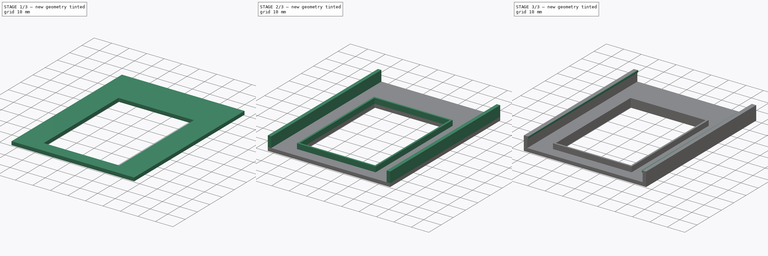
[diagram: build sequence overview — one tinted view per stage of 3, left to right]
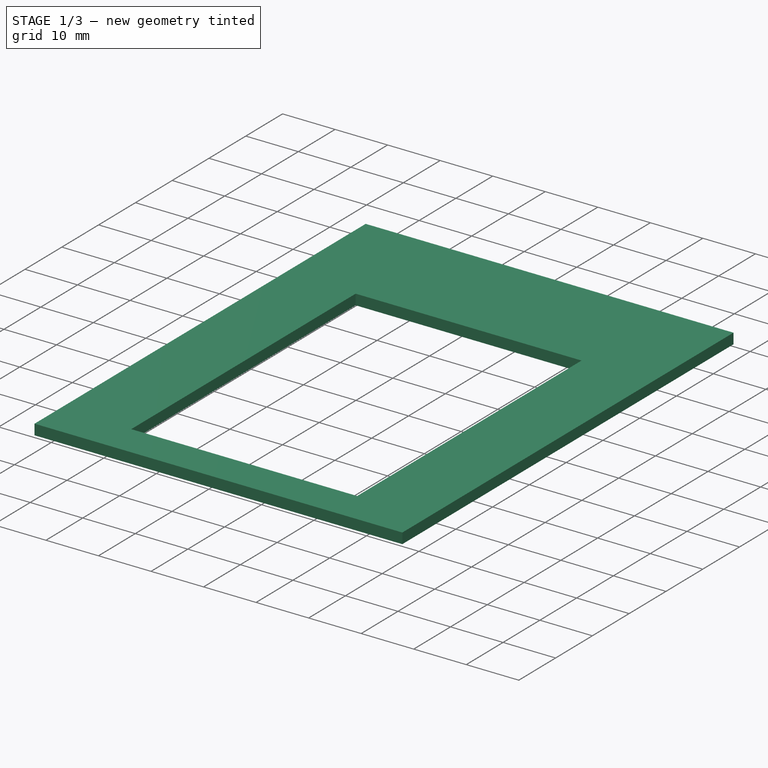
[diagram: stage 1 of 3 — iso view after this stage's code; geometry added in this stage tinted green]
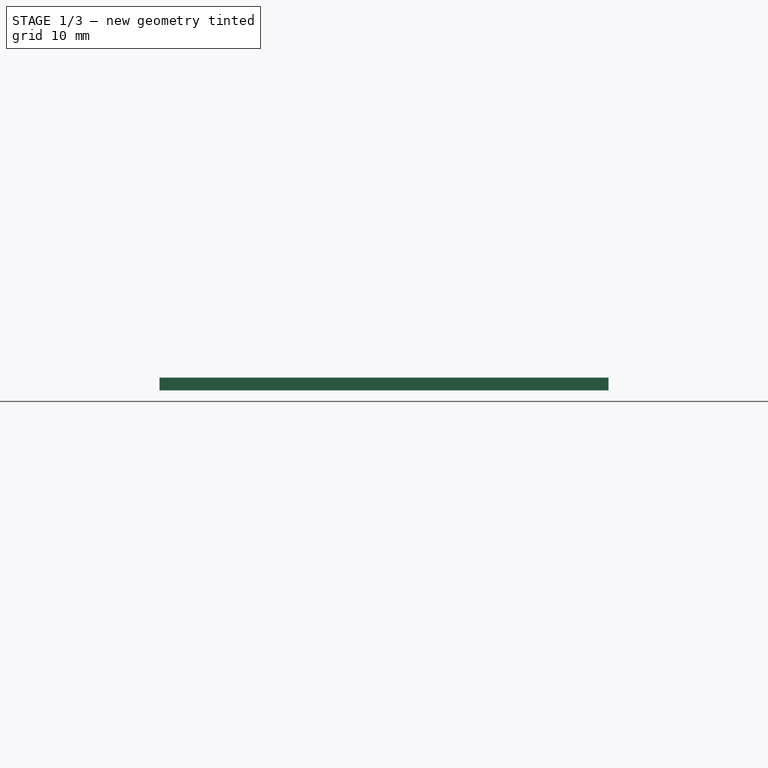
[diagram: stage 1 of 3 — front view after this stage's code; geometry added in this stage tinted green]
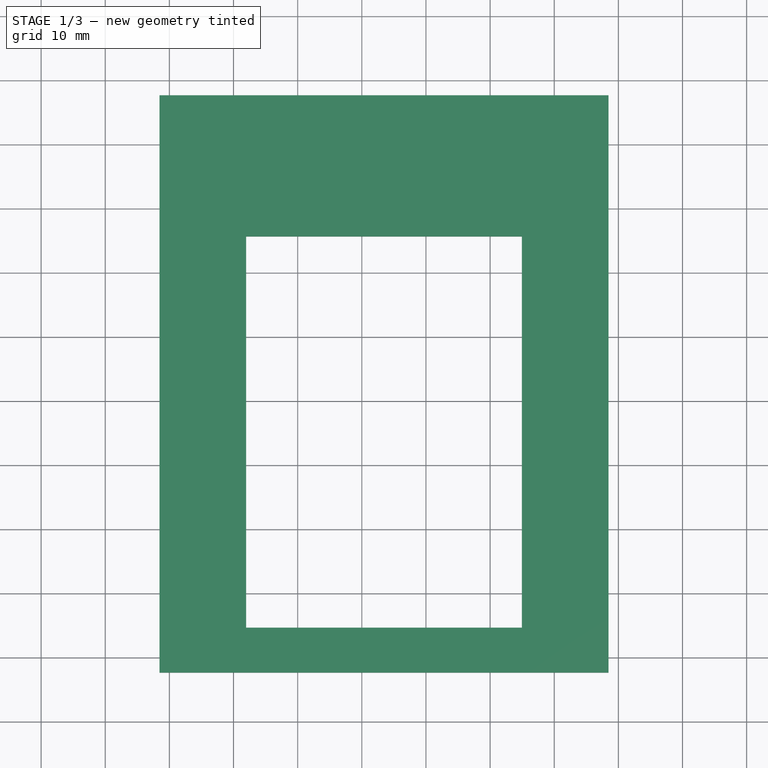
[diagram: stage 1 of 3 — top view after this stage's code; geometry added in this stage tinted green]
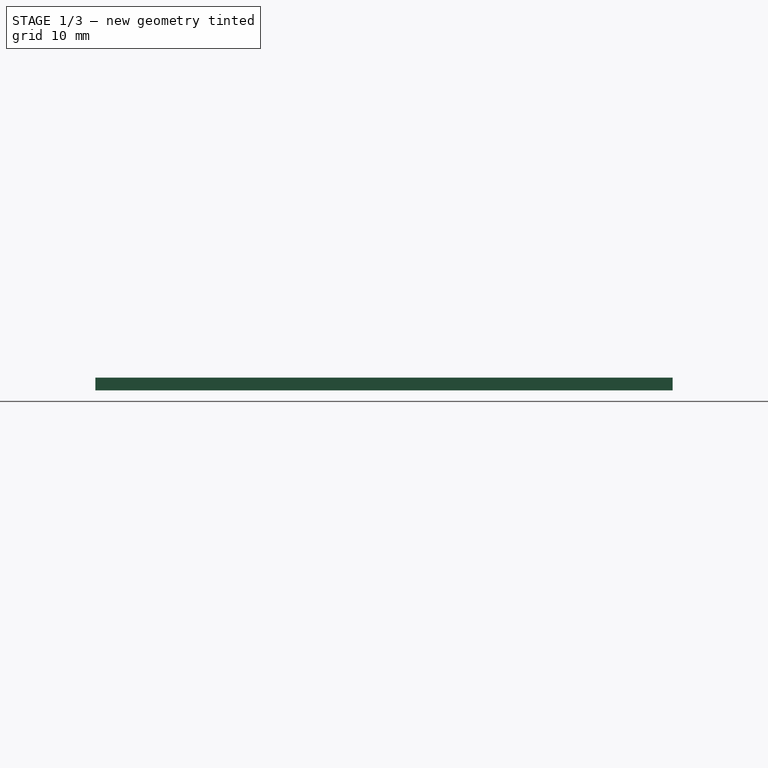
[diagram: stage 1 of 3 — right view after this stage's code; geometry added in this stage tinted green]
FCSTD DOCUMENT  (FreeCAD 0.18R16131 (Git))
Label: Main
License: All rights reserved
LicenseURL: http://en.wikipedia.org/wiki/All_rights_reserved
objects: Sketcher::SketchObject×7, PartDesign::Pad×5, PartDesign::Pocket×2, PartDesign::Body×1
note: 22 computed .brp shape members not serialized (recipe doc carries the construction recipe); baked Part::Feature solids carry a one-line shape summary decoded from their .brp

FEATURE [Sketcher::SketchObject] Sketch
  MapMode = 5
  Support = -> [XY_Plane]
  sketch-geometry (4):
    g0: LineSegment StartX=-31.5408 StartY=-62.3243 StartZ=0 EndX=38.4592 EndY=-62.3243 EndZ=0
    g1: LineSegment StartX=38.4592 StartY=-62.3243 StartZ=0 EndX=38.4592 EndY=27.6757 EndZ=0
    g2: LineSegment StartX=38.4592 StartY=27.6757 StartZ=0 EndX=-31.5408 EndY=27.6757 EndZ=0
    g3: LineSegment StartX=-31.5408 StartY=27.6757 StartZ=0 EndX=-31.5408 EndY=-62.3243 EndZ=0
  constraints (10):
    c: Coincident(g0,g1)
    c: Coincident(g1,g2)
    c: Coincident(g2,g3)
    c: Coincident(g3,g0)
    c: Horizontal(g0)
    c: Horizontal(g2)
    c: Vertical(g1)
    c: Vertical(g3)
    c: DistanceX(g0,g0) = 70
    c: DistanceY(g3,g3) = 90
FEATURE [PartDesign::Pad] Pad
  Length = 2
  Length2 = 100
  Profile = -> Sketch
  Type = 0
FEATURE [Sketcher::SketchObject] Sketch001
  ExternalGeometry = -> [Pad]
  MapMode = 5
  Placement = pos=(0,0,2) rot=(0,0,1;0rad)
  Support = -> [Pad]
  sketch-geometry (4):
    g0: LineSegment StartX=-18.0408 StartY=5.67568 StartZ=0 EndX=24.9592 EndY=5.67568 EndZ=0
    g1: LineSegment StartX=24.9592 StartY=5.67568 StartZ=0 EndX=24.9592 EndY=-55.3243 EndZ=0
    g2: LineSegment StartX=24.9592 StartY=-55.3243 StartZ=0 EndX=-18.0408 EndY=-55.3243 EndZ=0
    g3: LineSegment StartX=-18.0408 StartY=-55.3243 StartZ=0 EndX=-18.0408 EndY=5.67568 EndZ=0
  constraints (12):
    c: Coincident(g0,g1)
    c: Coincident(g1,g2)
    c: Coincident(g2,g3)
    c: Coincident(g3,g0)
    c: Horizontal(g0)
    c: Horizontal(g2)
    c: Vertical(g1)
    c: Vertical(g3)
    c: DistanceY(g-5,g2) = 7
    c: DistanceX(g2,g2) = 43
    c: DistanceY(g1,g1) = 61
    c: DistanceX(g-5,g2) = 13.5
FEATURE [PartDesign::Pocket] Pocket
  BaseFeature = -> Pad
  Length = 2
  Length2 = 100
  Profile = -> Sketch001
  Type = 0
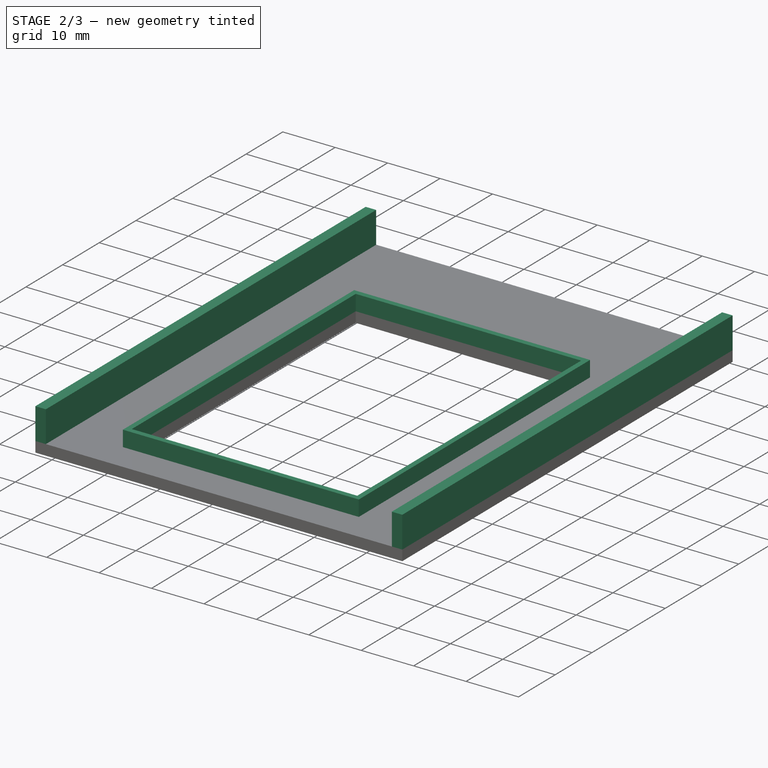
[diagram: stage 2 of 3 — iso view after this stage's code; geometry added in this stage tinted green]
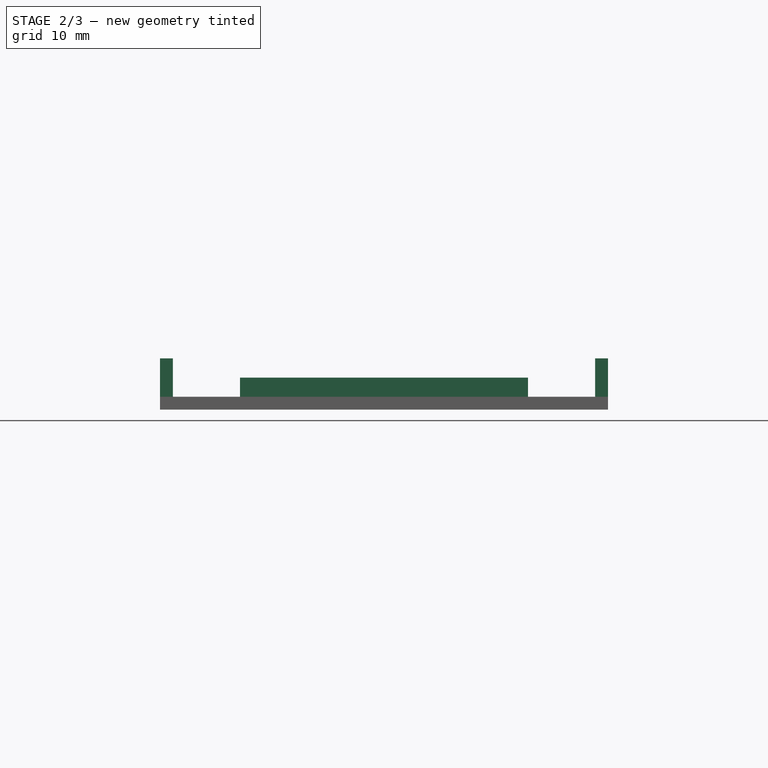
[diagram: stage 2 of 3 — front view after this stage's code; geometry added in this stage tinted green]
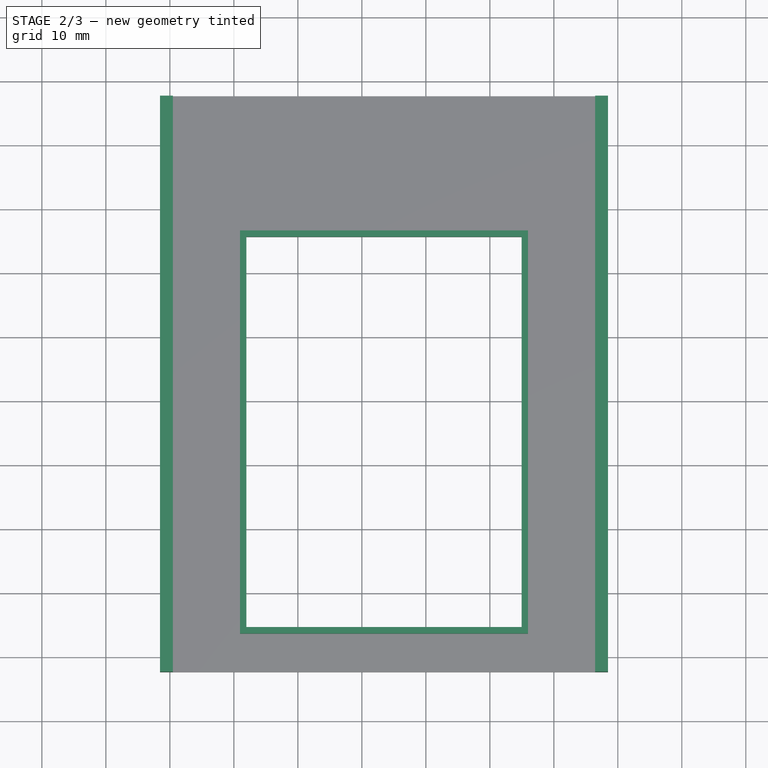
[diagram: stage 2 of 3 — top view after this stage's code; geometry added in this stage tinted green]
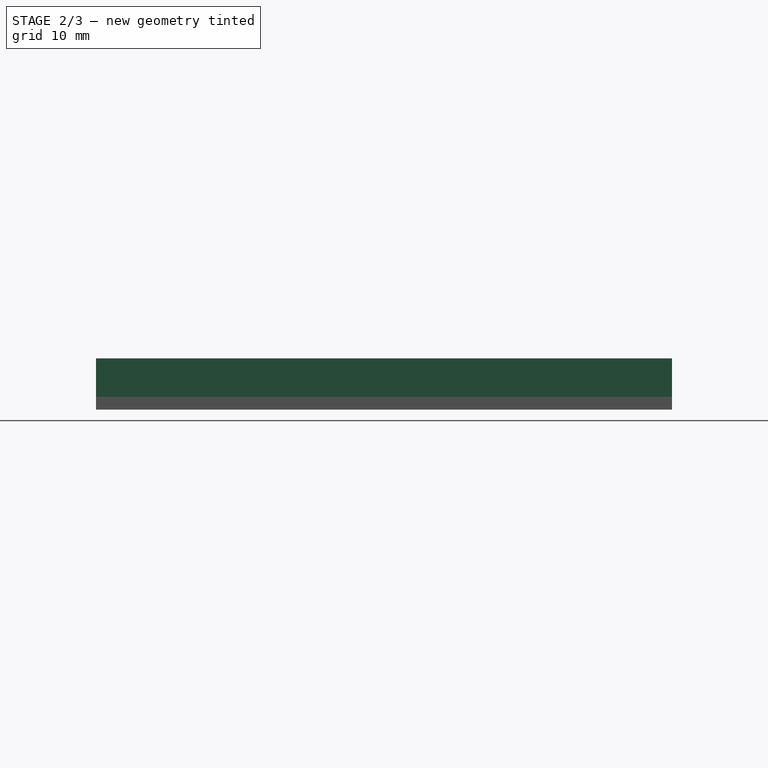
[diagram: stage 2 of 3 — right view after this stage's code; geometry added in this stage tinted green]
FEATURE [Sketcher::SketchObject] Sketch002
  ExternalGeometry = -> [Pocket]
  MapMode = 5
  Placement = pos=(0,0,2) rot=(0,0,1;0rad)
  Support = -> [Pocket]
  sketch-geometry (4):
    g0: LineSegment StartX=-19.0408 StartY=6.67568 StartZ=0 EndX=25.9592 EndY=6.67568 EndZ=0
    g1: LineSegment StartX=25.9592 StartY=6.67568 StartZ=0 EndX=25.9592 EndY=-56.3243 EndZ=0
    g2: LineSegment StartX=25.9592 StartY=-56.3243 StartZ=0 EndX=-19.0408 EndY=-56.3243 EndZ=0
    g3: LineSegment StartX=-19.0408 StartY=-56.3243 StartZ=0 EndX=-19.0408 EndY=6.67568 EndZ=0
  constraints (12):
    c: Coincident(g0,g1)
    c: Coincident(g1,g2)
    c: Coincident(g2,g3)
    c: Coincident(g3,g0)
    c: Horizontal(g0)
    c: Horizontal(g2)
    c: Vertical(g1)
    c: Vertical(g3)
    c: DistanceY(g-4,g0) = 1
    c: DistanceX(g0,g-4) = 1
    c: DistanceX(g-5,g0) = 1
    c: DistanceY(g2,g-6) = 1
FEATURE [PartDesign::Pad] Pad001
  BaseFeature = -> Pocket
  Length = 3
  Length2 = 100
  Profile = -> Sketch002
  Type = 0
FEATURE [Sketcher::SketchObject] Sketch003
  ExternalGeometry = -> [Pad001]
  MapMode = 5
  Placement = pos=(0,0,5) rot=(0,0,1;0rad)
  Support = -> [Pad001]
  sketch-geometry (4):
    g0: LineSegment StartX=-18.0408 StartY=5.67568 StartZ=0 EndX=24.9592 EndY=5.67568 EndZ=0
    g1: LineSegment StartX=24.9592 StartY=5.67568 StartZ=0 EndX=24.9592 EndY=-55.3243 EndZ=0
    g2: LineSegment StartX=24.9592 StartY=-55.3243 StartZ=0 EndX=-18.0408 EndY=-55.3243 EndZ=0
    g3: LineSegment StartX=-18.0408 StartY=-55.3243 StartZ=0 EndX=-18.0408 EndY=5.67568 EndZ=0
  constraints (12):
    c: Coincident(g0,g1)
    c: Coincident(g1,g2)
    c: Coincident(g2,g3)
    c: Coincident(g3,g0)
    c: Horizontal(g0)
    c: Horizontal(g2)
    c: Vertical(g1)
    c: Vertical(g3)
    c: DistanceX(g0,g-5) = 1
    c: DistanceY(g0,g-5) = 1
    c: DistanceY(g-6,g2) = 1
    c: DistanceX(g-6,g2) = 1
FEATURE [PartDesign::Pocket] Pocket001
  BaseFeature = -> Pad001
  Length = 3
  Length2 = 100
  Profile = -> Sketch003
  Type = 0
FEATURE [Sketcher::SketchObject] Sketch004
  ExternalGeometry = -> [Pocket001]
  MapMode = 5
  Placement = pos=(0,0,2) rot=(0,0,1;0rad)
  Support = -> [Pocket001]
  sketch-geometry (8):
    g0: LineSegment StartX=-31.5408 StartY=27.6757 StartZ=0 EndX=-29.5408 EndY=27.6757 EndZ=0
    g1: LineSegment StartX=-29.5408 StartY=27.6757 StartZ=0 EndX=-29.5408 EndY=-62.3243 EndZ=0
    g2: LineSegment StartX=-29.5408 StartY=-62.3243 StartZ=0 EndX=-31.5408 EndY=-62.3243 EndZ=0
    g3: LineSegment StartX=-31.5408 StartY=-62.3243 StartZ=0 EndX=-31.5408 EndY=27.6757 EndZ=0
    g4: LineSegment StartX=36.4592 StartY=27.6757 StartZ=0 EndX=38.4592 EndY=27.6757 EndZ=0
    g5: LineSegment StartX=38.4592 StartY=27.6757 StartZ=0 EndX=38.4592 EndY=-62.3243 EndZ=0
    g6: LineSegment StartX=38.4592 StartY=-62.3243 StartZ=0 EndX=36.4592 EndY=-62.3243 EndZ=0
    g7: LineSegment StartX=36.4592 StartY=-62.3243 StartZ=0 EndX=36.4592 EndY=27.6757 EndZ=0
  constraints (20):
    c: Coincident(g0,g1)
    c: Coincident(g1,g2)
    c: Coincident(g2,g3)
    c: Coincident(g3,g0)
    c: Horizontal(g0)
    c: Horizontal(g2)
    c: Vertical(g1)
    c: DistanceX(g2,g2) = 2
    c: Coincident(g2,g-3)
    c: Coincident(g0,g-3)
    c: Coincident(g4,g5)
    c: Coincident(g5,g6)
    c: Coincident(g6,g7)
    c: Coincident(g7,g4)
    c: Horizontal(g4)
    c: Horizontal(g6)
    c: Vertical(g7)
    c: DistanceX(g6,g6) = 2
    c: Coincident(g5,g-4)
    c: Coincident(g4,g-4)
FEATURE [PartDesign::Pad] Pad002
  BaseFeature = -> Pocket001
  Length = 6
  Length2 = 100
  Profile = -> Sketch004
  Type = 0
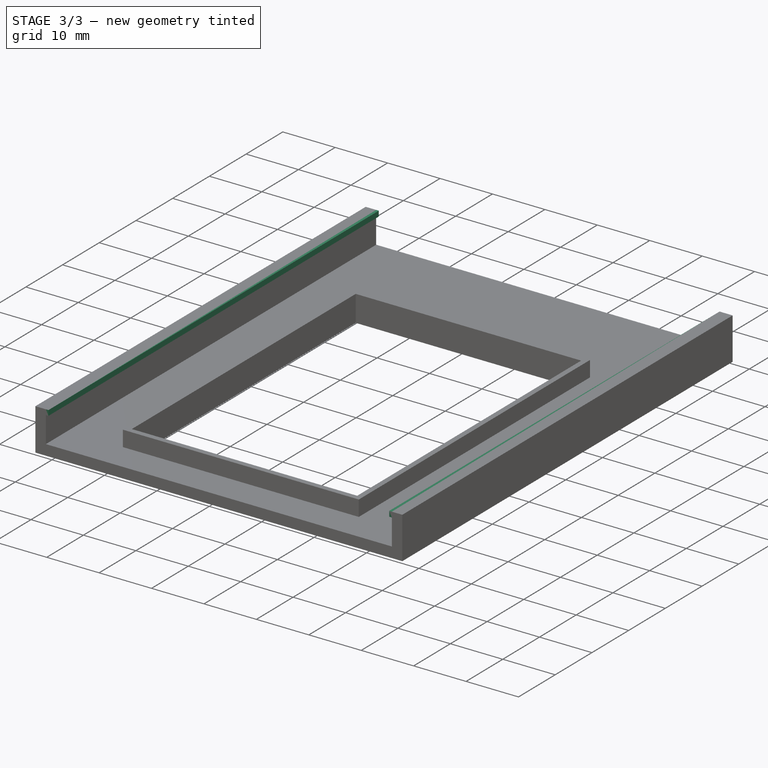
[diagram: stage 3 of 3 — iso view after this stage's code; geometry added in this stage tinted green]
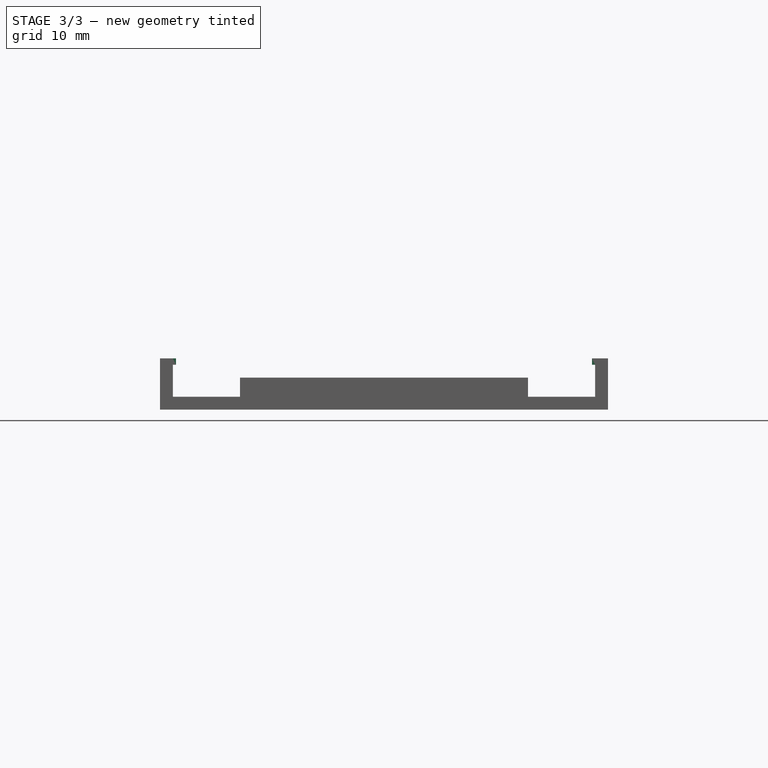
[diagram: stage 3 of 3 — front view after this stage's code; geometry added in this stage tinted green]
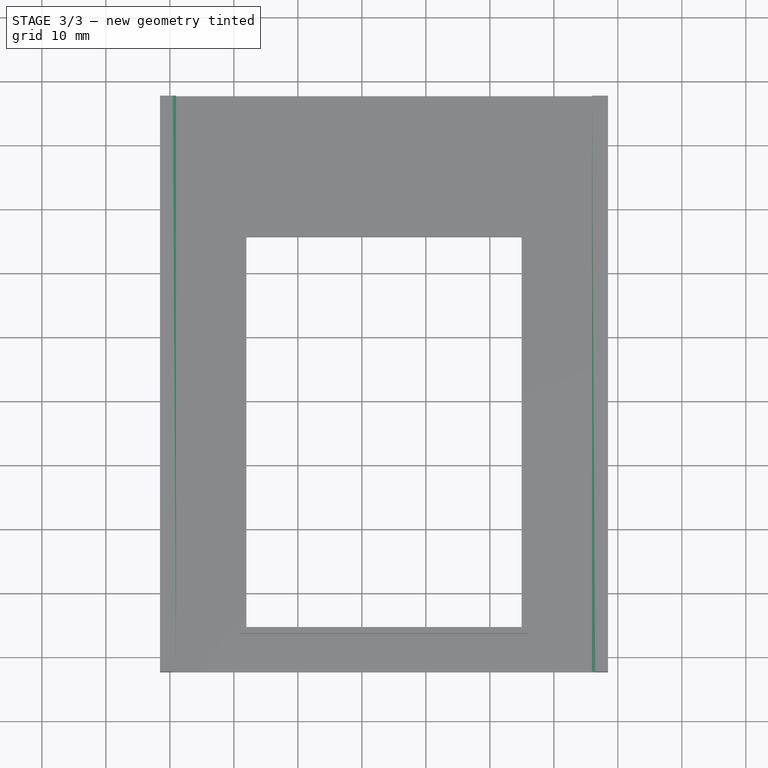
[diagram: stage 3 of 3 — top view after this stage's code; geometry added in this stage tinted green]
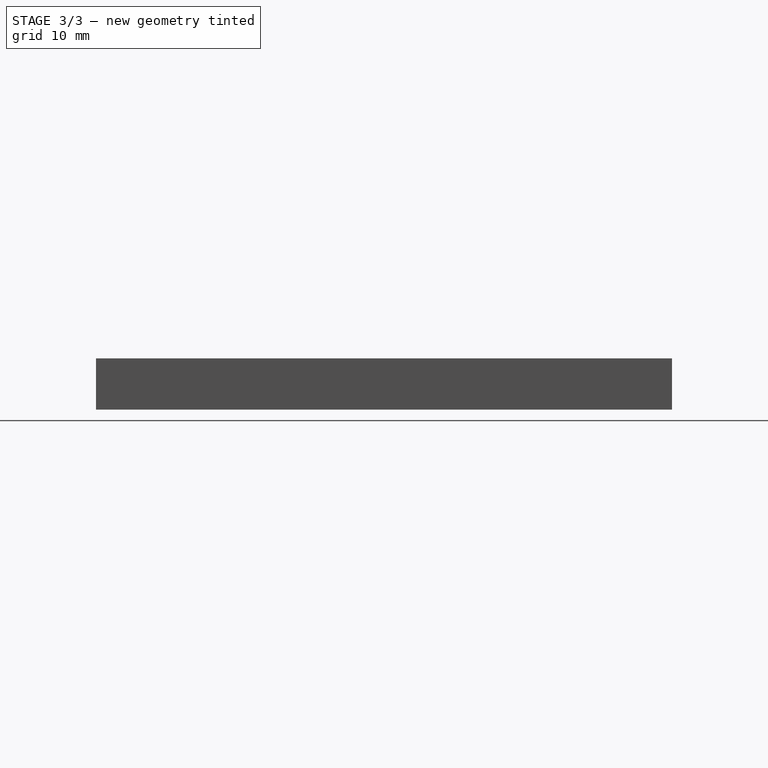
[diagram: stage 3 of 3 — right view after this stage's code; geometry added in this stage tinted green]
FEATURE [Sketcher::SketchObject] Sketch005
  ExternalGeometry = -> [Pad002]
  MapMode = 5
  Placement = pos=(36.4592,0,0) rot=(0.57735,-0.57735,-0.57735;2.0944rad)
  Support = -> [Pad002]
  sketch-geometry (4):
    g0: LineSegment StartX=-27.6757 StartY=8 StartZ=0 EndX=62.3243 EndY=8 EndZ=0
    g1: LineSegment StartX=62.3243 StartY=8 StartZ=0 EndX=62.3243 EndY=7 EndZ=0
    g2: LineSegment StartX=62.3243 StartY=7 StartZ=0 EndX=-27.6757 EndY=7 EndZ=0
    g3: LineSegment StartX=-27.6757 StartY=7 StartZ=0 EndX=-27.6757 EndY=8 EndZ=0
  constraints (10):
    c: Coincident(g0,g1)
    c: Coincident(g1,g2)
    c: Coincident(g2,g3)
    c: Coincident(g3,g0)
    c: Horizontal(g2)
    c: Vertical(g1)
    c: Vertical(g3)
    c: Coincident(g0,g-4)
    c: Coincident(g0,g-5)
    c: DistanceY(g3,g3) = 1
FEATURE [PartDesign::Pad] Pad003
  BaseFeature = -> Pad002
  Length = 0.5
  Length2 = 100
  Profile = -> Sketch005
  Type = 0
FEATURE [Sketcher::SketchObject] Sketch006
  ExternalGeometry = -> [Pad003]
  MapMode = 5
  Placement = pos=(-29.5408,0,0) rot=(0.57735,0.57735,0.57735;2.0944rad)
  Support = -> [Pad003]
  sketch-geometry (4):
    g0: LineSegment StartX=-62.3243 StartY=8 StartZ=0 EndX=27.6757 EndY=8 EndZ=0
    g1: LineSegment StartX=27.6757 StartY=8 StartZ=0 EndX=27.6757 EndY=7 EndZ=0
    g2: LineSegment StartX=27.6757 StartY=7 StartZ=0 EndX=-62.3243 EndY=7 EndZ=0
    g3: LineSegment StartX=-62.3243 StartY=7 StartZ=0 EndX=-62.3243 EndY=8 EndZ=0
  constraints (10):
    c: Coincident(g0,g1)
    c: Coincident(g1,g2)
    c: Coincident(g2,g3)
    c: Coincident(g3,g0)
    c: Horizontal(g2)
    c: Vertical(g1)
    c: Vertical(g3)
    c: Coincident(g0,g-4)
    c: DistanceY(g3,g3) = 1
    c: Coincident(g0,g-5)
FEATURE [PartDesign::Pad] Pad004
  BaseFeature = -> Pad003
  Length = 0.5
  Length2 = 100
  Profile = -> Sketch006
  Type = 0
FEATURE [PartDesign::Body] Body
  Group = -> [Sketch,Pad,Sketch001,Pocket,Sketch002,Pad001,Sketch003,Pocket001,Sketch004,Pad002,Sketch005,Pad003,Sketch006,Pad004]
  Origin = -> Origin
  Tip = -> Pad004
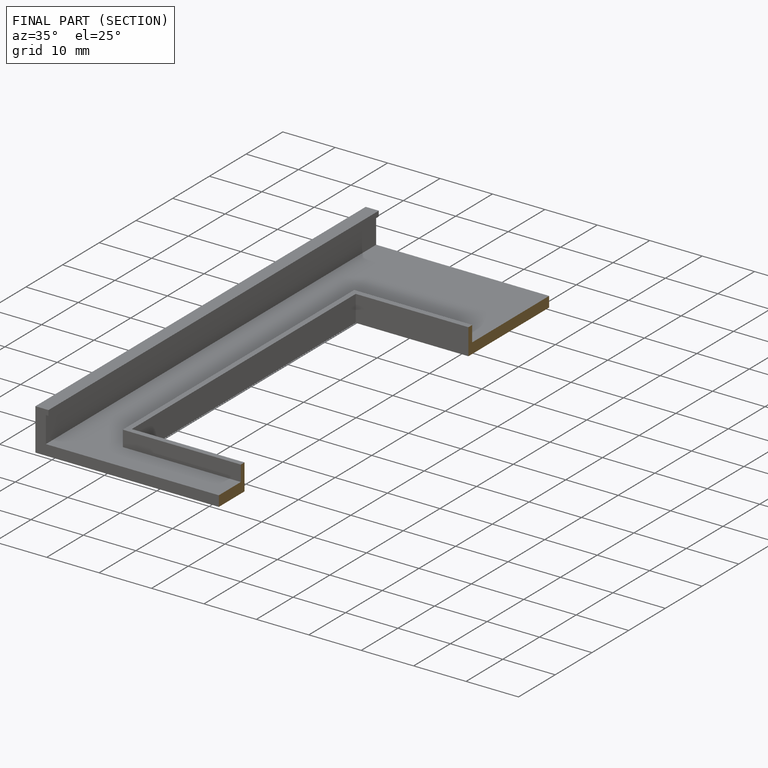
[diagram: finished part — half-section view (interior)]
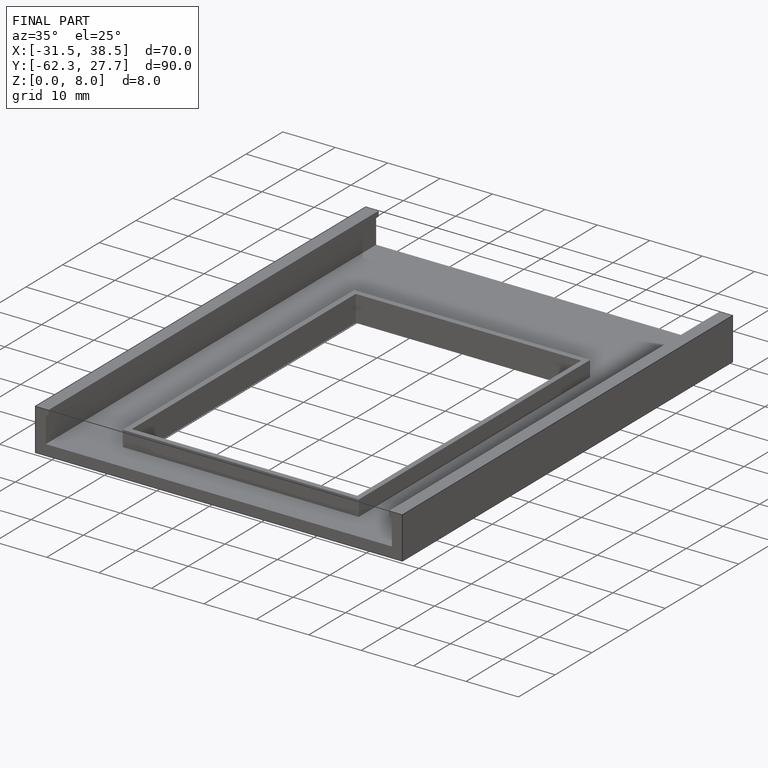
[diagram: finished part — iso view with bounding-box wireframe]
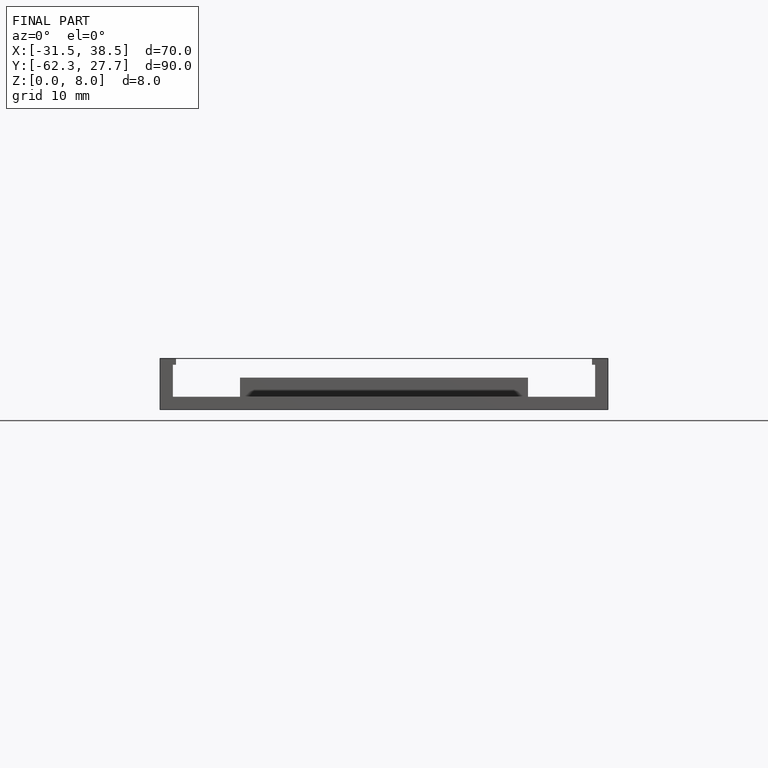
[diagram: finished part — front view with bounding-box wireframe]
